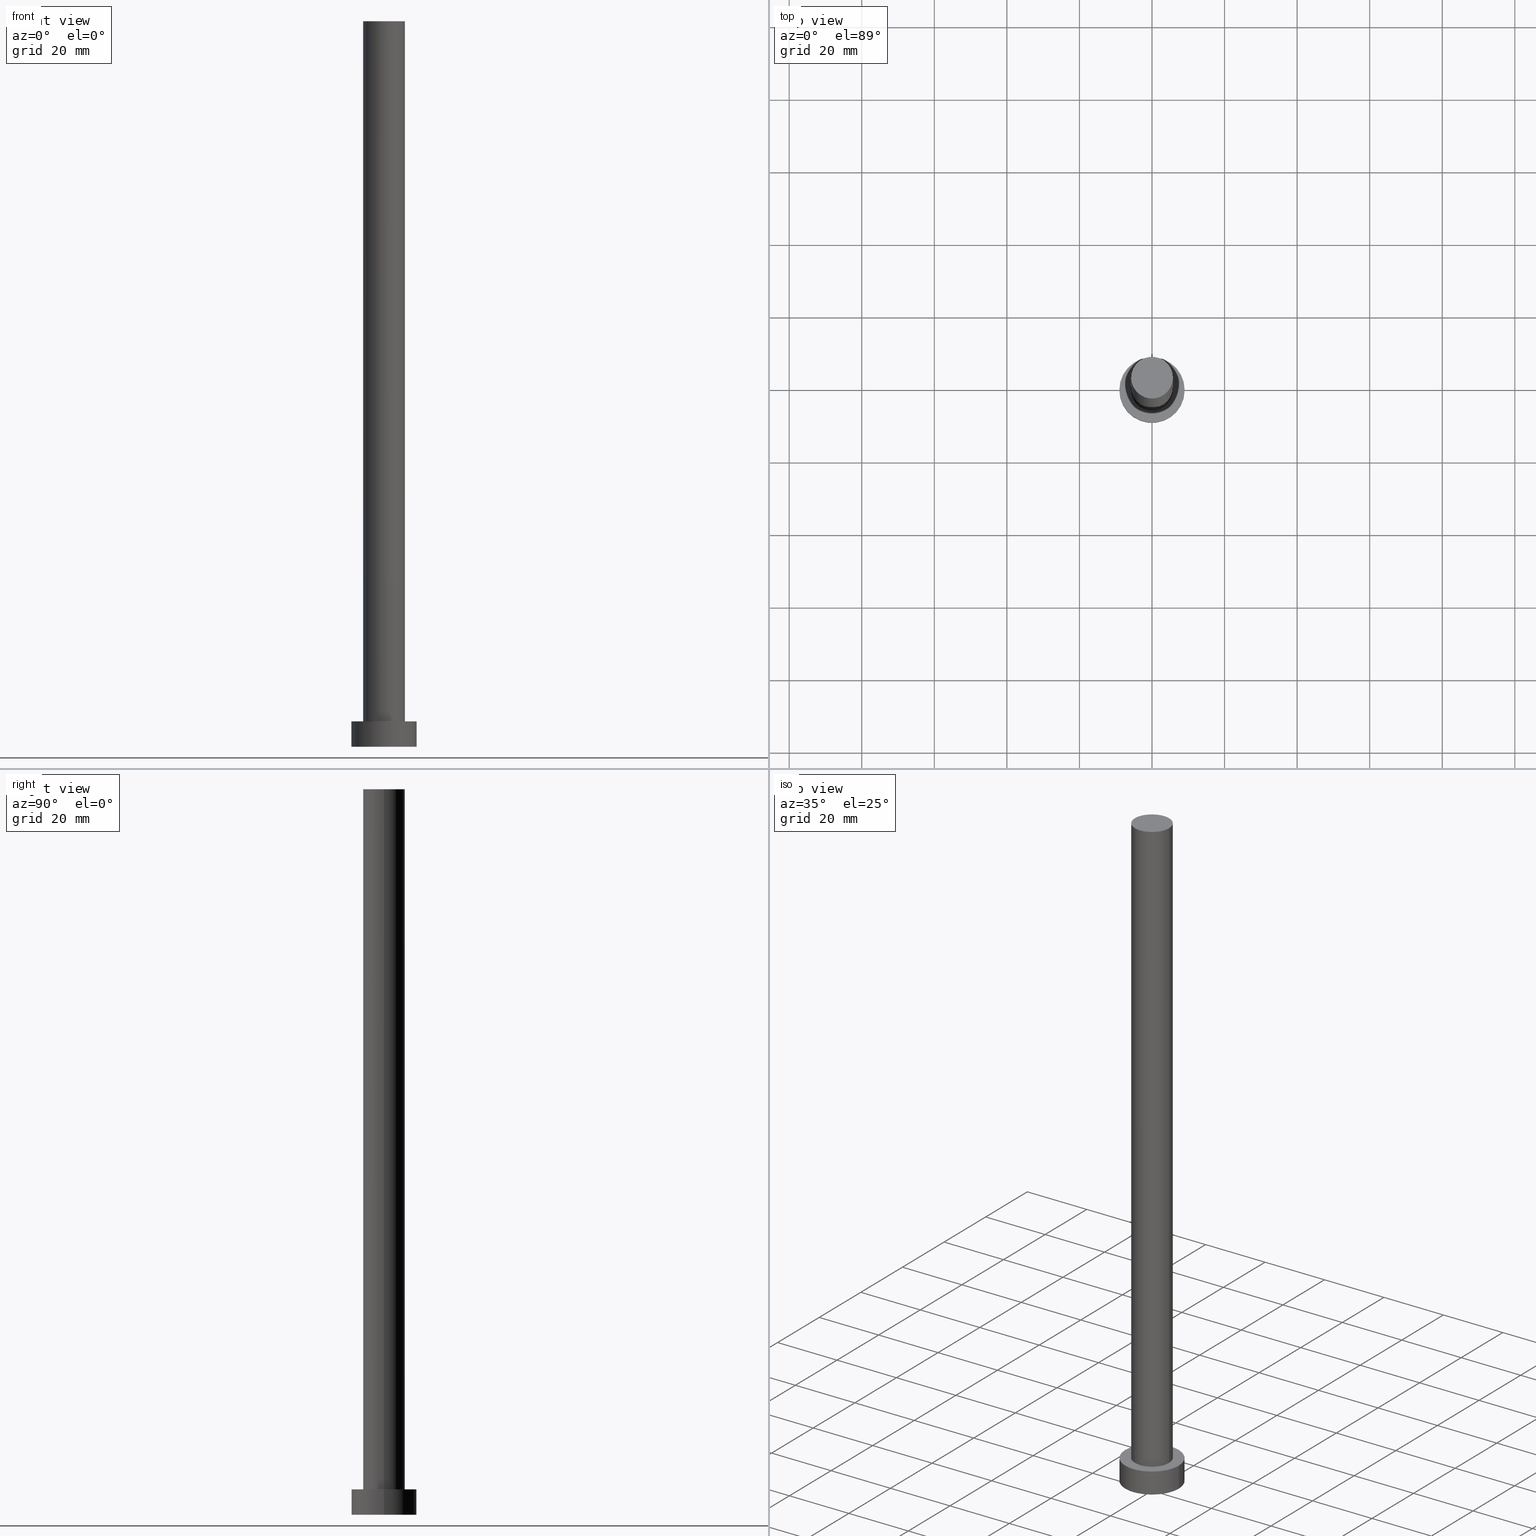
[diagram: canonical four-view strip — front | top / right | iso, engineering-drawing reading convention]
A machine part, canonical four-view strip (front | top / right | iso — engineering-drawing reading convention). The complete STEP part file that produces these views, byte-faithful:
ISO-10303-21;
HEADER;
FILE_DESCRIPTION (( 'STEP AP203' ),
    '1' );
FILE_NAME ('e01c.STEP',
    '2023-02-13T12:27:20',
    ( '' ),
    ( '' ),
    'SwSTEP 2.0',
    'SolidWorks 2019',
    '' );
FILE_SCHEMA (( 'CONFIG_CONTROL_DESIGN' ));
ENDSEC;

DATA;
#1 = APPROVAL_STATUS ( 'not_yet_approved' ) ;
#2 = DIRECTION ( 'NONE',  ( 0.000000000000000000, 0.000000000000000000, 1.000000000000000000 ) ) ;
#3 = CLOSED_SHELL ( 'NONE', ( #53, #253, #229, #205, #111, #145, #117 ) ) ;
#4 = PERSON_AND_ORGANIZATION_ROLE ( 'classification_officer' ) ;
#5 = AXIS2_PLACEMENT_3D ( 'NONE', #84, #17, #103 ) ;
#6 = VERTEX_POINT ( 'NONE', #23 ) ;
#7 = APPROVAL_STATUS ( 'not_yet_approved' ) ;
#8 = ORIENTED_EDGE ( 'NONE', *, *, #185, .F. ) ;
#9 = CARTESIAN_POINT ( 'NONE',  ( 0.000000000000000000, 0.000000000000000000, 200.0000000000000000 ) ) ;
#10 = PLANE ( 'NONE',  #184 ) ;
#11 = CIRCLE ( 'NONE', #82, 5.750000000000000000 ) ;
#12 = CARTESIAN_POINT ( 'NONE',  ( -5.750000000000000000, 0.000000000000000000, 200.0000000000000000 ) ) ;
#13 = FACE_OUTER_BOUND ( 'NONE', #116, .T. ) ;
#14 = AXIS2_PLACEMENT_3D ( 'NONE', #150, #125, #169 ) ;
#15 = EDGE_CURVE ( 'NONE', #110, #50, #210, .T. ) ;
#16 = DIRECTION ( 'NONE',  ( 1.000000000000000000, 0.000000000000000000, 0.000000000000000000 ) ) ;
#17 = DIRECTION ( 'NONE',  ( -0.000000000000000000, -0.000000000000000000, -1.000000000000000000 ) ) ;
#18 = ADVANCED_BREP_SHAPE_REPRESENTATION ( 'e01c', ( #67, #44 ), #160 ) ;
#19 = DIRECTION ( 'NONE',  ( 0.000000000000000000, 0.000000000000000000, 1.000000000000000000 ) ) ;
#20 = PERSON_AND_ORGANIZATION_ROLE ( 'design_supplier' ) ;
#21 = DIRECTION ( 'NONE',  ( 1.000000000000000000, 0.000000000000000000, 0.000000000000000000 ) ) ;
#22 = PERSON_AND_ORGANIZATION_ROLE ( 'design_owner' ) ;
#23 = CARTESIAN_POINT ( 'NONE',  ( 9.000000000000000000, 1.102182119232617714E-15, 7.000000000000000000 ) ) ;
#24 = PERSON_AND_ORGANIZATION ( #153, #175 ) ;
#25 = CC_DESIGN_APPROVAL ( #83, ( #62 ) ) ;
#26 = CARTESIAN_POINT ( 'NONE',  ( 0.000000000000000000, 0.000000000000000000, 0.000000000000000000 ) ) ;
#27 = AXIS2_PLACEMENT_3D ( 'NONE', #190, #168, #233 ) ;
#28 = AXIS2_PLACEMENT_3D ( 'NONE', #254, #146, #64 ) ;
#29 = VERTEX_POINT ( 'NONE', #173 ) ;
#30 = CC_DESIGN_DATE_AND_TIME_ASSIGNMENT ( #176, #94, ( #62 ) ) ;
#31 = DIRECTION ( 'NONE',  ( -1.000000000000000000, 0.000000000000000000, 0.000000000000000000 ) ) ;
#32 = CARTESIAN_POINT ( 'NONE',  ( -9.000000000000000000, 0.000000000000000000, 7.000000000000000000 ) ) ;
#33 = AXIS2_PLACEMENT_3D ( 'NONE', #100, #186, #162 ) ;
#34 = VECTOR ( 'NONE', #207, 1000.000000000000000 ) ;
#35 = ORIENTED_EDGE ( 'NONE', *, *, #152, .T. ) ;
#36 = APPLICATION_PROTOCOL_DEFINITION ( 'international standard', 'config_control_design', 1994, #149 ) ;
#37 = EDGE_LOOP ( 'NONE', ( #251, #148 ) ) ;
#38 = CC_DESIGN_PERSON_AND_ORGANIZATION_ASSIGNMENT ( #200, #20, ( #120 ) ) ;
#39 = MECHANICAL_CONTEXT ( 'NONE', #59, 'mechanical' ) ;
#40 = CARTESIAN_POINT ( 'NONE',  ( 9.000000000000000000, 1.102182119232617714E-15, 0.000000000000000000 ) ) ;
#41 = ORIENTED_EDGE ( 'NONE', *, *, #217, .F. ) ;
#42 = DIRECTION ( 'NONE',  ( -0.000000000000000000, -0.000000000000000000, -1.000000000000000000 ) ) ;
#43 = DESIGN_CONTEXT ( 'detailed design', #149, 'design' ) ;
#44 = AXIS2_PLACEMENT_3D ( 'NONE', #107, #195, #224 ) ;
#45 = CARTESIAN_POINT ( 'NONE',  ( 0.000000000000000000, 0.000000000000000000, 7.000000000000000000 ) ) ;
#46 = LINE ( 'NONE', #32, #164 ) ;
#47 = ORIENTED_EDGE ( 'NONE', *, *, #217, .T. ) ;
#48 = DIRECTION ( 'NONE',  ( 0.000000000000000000, 0.000000000000000000, 1.000000000000000000 ) ) ;
#49 = CALENDAR_DATE ( 2023, 13, 2 ) ;
#50 = VERTEX_POINT ( 'NONE', #133 ) ;
#51 = COORDINATED_UNIVERSAL_TIME_OFFSET ( 1, 0, .AHEAD. ) ;
#52 = ORIENTED_EDGE ( 'NONE', *, *, #185, .T. ) ;
#53 = ADVANCED_FACE ( 'NONE', ( #96 ), #157, .T. ) ;
#54 = CALENDAR_DATE ( 2023, 13, 2 ) ;
#55 = CARTESIAN_POINT ( 'NONE',  ( 9.000000000000000000, 1.102182119232617714E-15, 7.000000000000000000 ) ) ;
#56 = COORDINATED_UNIVERSAL_TIME_OFFSET ( 1, 0, .AHEAD. ) ;
#57 = DIRECTION ( 'NONE',  ( -0.000000000000000000, -0.000000000000000000, -1.000000000000000000 ) ) ;
#58 = PLANE ( 'NONE',  #66 ) ;
#59 = APPLICATION_CONTEXT ( 'configuration controlled 3d designs of mechanical parts and assemblies' ) ;
#60 = PRODUCT_RELATED_PRODUCT_CATEGORY ( 'detail', '', ( #86 ) ) ;
#61 = CARTESIAN_POINT ( 'NONE',  ( 0.000000000000000000, 0.000000000000000000, 200.0000000000000000 ) ) ;
#62 = SECURITY_CLASSIFICATION ( '', '', #92 ) ;
#63 =( NAMED_UNIT ( * ) PLANE_ANGLE_UNIT ( ) SI_UNIT ( $, .RADIAN. ) );
#64 = DIRECTION ( 'NONE',  ( -1.000000000000000000, 0.000000000000000000, 0.000000000000000000 ) ) ;
#65 = EDGE_CURVE ( 'NONE', #6, #110, #201, .T. ) ;
#66 = AXIS2_PLACEMENT_3D ( 'NONE', #91, #2, #137 ) ;
#67 = MANIFOLD_SOLID_BREP ( 'P�idat vysunut�m3', #3 ) ;
#68 = CC_DESIGN_PERSON_AND_ORGANIZATION_ASSIGNMENT ( #170, #158, ( #124 ) ) ;
#69 = CC_DESIGN_APPROVAL ( #102, ( #120 ) ) ;
#70 = PERSON_AND_ORGANIZATION ( #153, #175 ) ;
#71 = ORIENTED_EDGE ( 'NONE', *, *, #163, .T. ) ;
#72 = APPROVAL_ROLE ( '' ) ;
#73 = VERTEX_POINT ( 'NONE', #134 ) ;
#74 = COORDINATED_UNIVERSAL_TIME_OFFSET ( 1, 0, .AHEAD. ) ;
#75 = ORIENTED_EDGE ( 'NONE', *, *, #65, .F. ) ;
#76 = APPROVAL_DATE_TIME ( #118, #102 ) ;
#77 = EDGE_LOOP ( 'NONE', ( #93, #221 ) ) ;
#78 = CC_DESIGN_APPROVAL ( #197, ( #124 ) ) ;
#79 = FACE_OUTER_BOUND ( 'NONE', #240, .T. ) ;
#80 = CC_DESIGN_PERSON_AND_ORGANIZATION_ASSIGNMENT ( #151, #198, ( #120 ) ) ;
#81 = LINE ( 'NONE', #99, #101 ) ;
#82 = AXIS2_PLACEMENT_3D ( 'NONE', #192, #48, #89 ) ;
#83 = APPROVAL ( #7, 'NEUR�EN�' ) ;
#84 = CARTESIAN_POINT ( 'NONE',  ( 0.000000000000000000, 0.000000000000000000, 7.000000000000000000 ) ) ;
#85 = EDGE_LOOP ( 'NONE', ( #199, #223, #177, #8 ) ) ;
#86 = PRODUCT ( 'e01c', 'e01c', '', ( #39 ) ) ;
#87 = ORIENTED_EDGE ( 'NONE', *, *, #140, .T. ) ;
#88 = CC_DESIGN_PERSON_AND_ORGANIZATION_ASSIGNMENT ( #24, #4, ( #62 ) ) ;
#89 = DIRECTION ( 'NONE',  ( 1.000000000000000000, 0.000000000000000000, 0.000000000000000000 ) ) ;
#90 = CC_DESIGN_DATE_AND_TIME_ASSIGNMENT ( #159, #115, ( #124 ) ) ;
#91 = CARTESIAN_POINT ( 'NONE',  ( 0.000000000000000000, 0.000000000000000000, 200.0000000000000000 ) ) ;
#92 = SECURITY_CLASSIFICATION_LEVEL ( 'unclassified' ) ;
#93 = ORIENTED_EDGE ( 'NONE', *, *, #135, .F. ) ;
#94 = DATE_TIME_ROLE ( 'classification_date' ) ;
#95 = APPROVAL_STATUS ( 'not_yet_approved' ) ;
#96 = FACE_OUTER_BOUND ( 'NONE', #178, .T. ) ;
#97 = APPROVAL_PERSON_ORGANIZATION ( #132, #83, #72 ) ;
#98 = VERTEX_POINT ( 'NONE', #182 ) ;
#99 = CARTESIAN_POINT ( 'NONE',  ( 5.750000000000000000, 7.041719095097280880E-16, 200.0000000000000000 ) ) ;
#100 = CARTESIAN_POINT ( 'NONE',  ( 0.000000000000000000, 0.000000000000000000, 7.000000000000000000 ) ) ;
#101 = VECTOR ( 'NONE', #211, 1000.000000000000000 ) ;
#102 = APPROVAL ( #1, 'NEUR�EN�' ) ;
#103 = DIRECTION ( 'NONE',  ( -1.000000000000000000, 0.000000000000000000, 0.000000000000000000 ) ) ;
#104 = DIRECTION ( 'NONE',  ( 0.000000000000000000, 0.000000000000000000, 1.000000000000000000 ) ) ;
#105 = AXIS2_PLACEMENT_3D ( 'NONE', #232, #123, #16 ) ;
#106 = FACE_BOUND ( 'NONE', #77, .T. ) ;
#107 = CARTESIAN_POINT ( 'NONE',  ( 0.000000000000000000, 0.000000000000000000, 0.000000000000000000 ) ) ;
#108 = ORIENTED_EDGE ( 'NONE', *, *, #135, .T. ) ;
#109 = APPROVAL_DATE_TIME ( #227, #83 ) ;
#110 = VERTEX_POINT ( 'NONE', #40 ) ;
#111 = ADVANCED_FACE ( 'NONE', ( #228 ), #10, .F. ) ;
#112 = CALENDAR_DATE ( 2023, 13, 2 ) ;
#113 = DATE_AND_TIME ( #112, #193 ) ;
#114 = DIRECTION ( 'NONE',  ( -1.000000000000000000, 0.000000000000000000, 0.000000000000000000 ) ) ;
#115 = DATE_TIME_ROLE ( 'creation_date' ) ;
#116 = EDGE_LOOP ( 'NONE', ( #75, #155, #52, #194 ) ) ;
#117 = ADVANCED_FACE ( 'NONE', ( #79 ), #58, .T. ) ;
#118 = DATE_AND_TIME ( #202, #179 ) ;
#119 = ORIENTED_EDGE ( 'NONE', *, *, #140, .F. ) ;
#120 = PRODUCT_DEFINITION_FORMATION_WITH_SPECIFIED_SOURCE ( 'LIBOVOLN�', '', #86, .NOT_KNOWN. ) ;
#121 = EDGE_CURVE ( 'NONE', #98, #144, #230, .T. ) ;
#122 = DIRECTION ( 'NONE',  ( 1.000000000000000000, 0.000000000000000000, 0.000000000000000000 ) ) ;
#123 = DIRECTION ( 'NONE',  ( 0.000000000000000000, 0.000000000000000000, 1.000000000000000000 ) ) ;
#124 = PRODUCT_DEFINITION ( 'NEZN�M�', '', #120, #43 ) ;
#125 = DIRECTION ( 'NONE',  ( 0.000000000000000000, 0.000000000000000000, 1.000000000000000000 ) ) ;
#126 = DIRECTION ( 'NONE',  ( 1.000000000000000000, 0.000000000000000000, 0.000000000000000000 ) ) ;
#127 = ORIENTED_EDGE ( 'NONE', *, *, #235, .F. ) ;
#128 = APPLICATION_PROTOCOL_DEFINITION ( 'international standard', 'config_control_design', 1994, #59 ) ;
#129 = CIRCLE ( 'NONE', #27, 5.750000000000000000 ) ;
#130 = APPROVAL_PERSON_ORGANIZATION ( #70, #197, #222 ) ;
#131 = APPROVAL_ROLE ( '' ) ;
#132 = PERSON_AND_ORGANIZATION ( #153, #175 ) ;
#133 = CARTESIAN_POINT ( 'NONE',  ( -9.000000000000000000, 0.000000000000000000, 0.000000000000000000 ) ) ;
#134 = CARTESIAN_POINT ( 'NONE',  ( -9.000000000000000000, 0.000000000000000000, 7.000000000000000000 ) ) ;
#135 = EDGE_CURVE ( 'NONE', #144, #161, #181, .T. ) ;
#136 = UNCERTAINTY_MEASURE_WITH_UNIT (LENGTH_MEASURE( 1.000000000000000082E-05 ), #236, 'distance_accuracy_value', 'NONE');
#137 = DIRECTION ( 'NONE',  ( 1.000000000000000000, 0.000000000000000000, -0.000000000000000000 ) ) ;
#138 = PRODUCT_DEFINITION_SHAPE ( 'NONE', 'NONE',  #124 ) ;
#139 = APPROVAL_PERSON_ORGANIZATION ( #172, #102, #131 ) ;
#140 = EDGE_CURVE ( 'NONE', #29, #161, #81, .T. ) ;
#141 = AXIS2_PLACEMENT_3D ( 'NONE', #237, #216, #255 ) ;
#142 = PLANE ( 'NONE',  #141 ) ;
#143 = DIRECTION ( 'NONE',  ( -0.000000000000000000, -0.000000000000000000, -1.000000000000000000 ) ) ;
#144 = VERTEX_POINT ( 'NONE', #183 ) ;
#145 = ADVANCED_FACE ( 'NONE', ( #209 ), #246, .T. ) ;
#146 = DIRECTION ( 'NONE',  ( -0.000000000000000000, -0.000000000000000000, -1.000000000000000000 ) ) ;
#147 = VECTOR ( 'NONE', #57, 1000.000000000000000 ) ;
#148 = ORIENTED_EDGE ( 'NONE', *, *, #191, .T. ) ;
#149 = APPLICATION_CONTEXT ( 'configuration controlled 3d designs of mechanical parts and assemblies' ) ;
#150 = CARTESIAN_POINT ( 'NONE',  ( 0.000000000000000000, 0.000000000000000000, 200.0000000000000000 ) ) ;
#151 = PERSON_AND_ORGANIZATION ( #153, #175 ) ;
#152 = EDGE_CURVE ( 'NONE', #98, #29, #219, .T. ) ;
#153 = PERSON ( 'NEUR�EN�', 'NEUR�EN�', 'NEUR�EN�', ('NEUR�EN�'), ('NEUR�EN�'), ('NEUR�EN�') ) ;
#154 = PERSON_AND_ORGANIZATION ( #153, #175 ) ;
#155 = ORIENTED_EDGE ( 'NONE', *, *, #248, .F. ) ;
#156 = CALENDAR_DATE ( 2023, 13, 2 ) ;
#157 = CYLINDRICAL_SURFACE ( 'NONE', #214, 5.750000000000000000 ) ;
#158 = PERSON_AND_ORGANIZATION_ROLE ( 'creator' ) ;
#159 = DATE_AND_TIME ( #49, #231 ) ;
#160 =( GEOMETRIC_REPRESENTATION_CONTEXT ( 3 ) GLOBAL_UNCERTAINTY_ASSIGNED_CONTEXT ( ( #136 ) ) GLOBAL_UNIT_ASSIGNED_CONTEXT ( ( #236, #63, #252 ) ) REPRESENTATION_CONTEXT ( 'NONE', 'WORKASPACE' ) );
#161 = VERTEX_POINT ( 'NONE', #189 ) ;
#162 = DIRECTION ( 'NONE',  ( 1.000000000000000000, 0.000000000000000000, 0.000000000000000000 ) ) ;
#163 = EDGE_CURVE ( 'NONE', #161, #144, #129, .T. ) ;
#164 = VECTOR ( 'NONE', #143, 1000.000000000000000 ) ;
#165 = FACE_OUTER_BOUND ( 'NONE', #85, .T. ) ;
#166 = ORIENTED_EDGE ( 'NONE', *, *, #121, .F. ) ;
#167 = CC_DESIGN_SECURITY_CLASSIFICATION ( #62, ( #120 ) ) ;
#168 = DIRECTION ( 'NONE',  ( 0.000000000000000000, 0.000000000000000000, 1.000000000000000000 ) ) ;
#169 = DIRECTION ( 'NONE',  ( 1.000000000000000000, 0.000000000000000000, 0.000000000000000000 ) ) ;
#170 = PERSON_AND_ORGANIZATION ( #153, #175 ) ;
#171 = DIRECTION ( 'NONE',  ( 1.000000000000000000, 0.000000000000000000, -0.000000000000000000 ) ) ;
#172 = PERSON_AND_ORGANIZATION ( #153, #175 ) ;
#173 = CARTESIAN_POINT ( 'NONE',  ( 5.750000000000000000, 7.041719095097280880E-16, 200.0000000000000000 ) ) ;
#174 = CC_DESIGN_PERSON_AND_ORGANIZATION_ASSIGNMENT ( #154, #22, ( #86 ) ) ;
#175 = ORGANIZATION ( 'NEUR�EN�', 'NEUR�EN�', '' ) ;
#176 = DATE_AND_TIME ( #54, #218 ) ;
#177 = ORIENTED_EDGE ( 'NONE', *, *, #15, .T. ) ;
#178 = EDGE_LOOP ( 'NONE', ( #41, #87, #71, #166 ) ) ;
#179 = LOCAL_TIME ( 13, 27, 20.00000000000000000, #51 ) ;
#180 = AXIS2_PLACEMENT_3D ( 'NONE', #61, #42, #31 ) ;
#181 = CIRCLE ( 'NONE', #33, 5.750000000000000000 ) ;
#182 = CARTESIAN_POINT ( 'NONE',  ( -5.750000000000000000, 0.000000000000000000, 200.0000000000000000 ) ) ;
#183 = CARTESIAN_POINT ( 'NONE',  ( -5.750000000000000000, 0.000000000000000000, 7.000000000000000000 ) ) ;
#184 = AXIS2_PLACEMENT_3D ( 'NONE', #26, #19, #171 ) ;
#185 = EDGE_CURVE ( 'NONE', #73, #50, #46, .T. ) ;
#186 = DIRECTION ( 'NONE',  ( 0.000000000000000000, 0.000000000000000000, 1.000000000000000000 ) ) ;
#187 = FACE_OUTER_BOUND ( 'NONE', #37, .T. ) ;
#188 = CARTESIAN_POINT ( 'NONE',  ( 0.000000000000000000, 0.000000000000000000, 0.000000000000000000 ) ) ;
#189 = CARTESIAN_POINT ( 'NONE',  ( 5.750000000000000000, 7.041719095097280880E-16, 7.000000000000000000 ) ) ;
#190 = CARTESIAN_POINT ( 'NONE',  ( 0.000000000000000000, 0.000000000000000000, 7.000000000000000000 ) ) ;
#191 = EDGE_CURVE ( 'NONE', #6, #73, #206, .T. ) ;
#192 = CARTESIAN_POINT ( 'NONE',  ( 0.000000000000000000, 0.000000000000000000, 200.0000000000000000 ) ) ;
#193 = LOCAL_TIME ( 13, 27, 20.00000000000000000, #74 ) ;
#194 = ORIENTED_EDGE ( 'NONE', *, *, #235, .T. ) ;
#195 = DIRECTION ( 'NONE',  ( 0.000000000000000000, 0.000000000000000000, 1.000000000000000000 ) ) ;
#196 = ORIENTED_EDGE ( 'NONE', *, *, #15, .F. ) ;
#197 = APPROVAL ( #95, 'NEUR�EN�' ) ;
#198 = PERSON_AND_ORGANIZATION_ROLE ( 'creator' ) ;
#199 = ORIENTED_EDGE ( 'NONE', *, *, #191, .F. ) ;
#200 = PERSON_AND_ORGANIZATION ( #153, #175 ) ;
#201 = LINE ( 'NONE', #55, #147 ) ;
#202 = CALENDAR_DATE ( 2023, 13, 2 ) ;
#203 = COORDINATED_UNIVERSAL_TIME_OFFSET ( 1, 0, .AHEAD. ) ;
#204 = CARTESIAN_POINT ( 'NONE',  ( 0.000000000000000000, 0.000000000000000000, 0.000000000000000000 ) ) ;
#205 = ADVANCED_FACE ( 'NONE', ( #106, #187 ), #142, .T. ) ;
#206 = CIRCLE ( 'NONE', #105, 9.000000000000000000 ) ;
#207 = DIRECTION ( 'NONE',  ( -0.000000000000000000, -0.000000000000000000, -1.000000000000000000 ) ) ;
#208 = CIRCLE ( 'NONE', #215, 9.000000000000000000 ) ;
#209 = FACE_OUTER_BOUND ( 'NONE', #234, .T. ) ;
#210 = CIRCLE ( 'NONE', #249, 9.000000000000000000 ) ;
#211 = DIRECTION ( 'NONE',  ( -0.000000000000000000, -0.000000000000000000, -1.000000000000000000 ) ) ;
#212 = CYLINDRICAL_SURFACE ( 'NONE', #28, 9.000000000000000000 ) ;
#213 = CYLINDRICAL_SURFACE ( 'NONE', #5, 9.000000000000000000 ) ;
#214 = AXIS2_PLACEMENT_3D ( 'NONE', #9, #242, #114 ) ;
#215 = AXIS2_PLACEMENT_3D ( 'NONE', #45, #104, #122 ) ;
#216 = DIRECTION ( 'NONE',  ( 0.000000000000000000, 0.000000000000000000, 1.000000000000000000 ) ) ;
#217 = EDGE_CURVE ( 'NONE', #29, #98, #11, .T. ) ;
#218 = LOCAL_TIME ( 13, 27, 20.00000000000000000, #56 ) ;
#219 = CIRCLE ( 'NONE', #14, 5.750000000000000000 ) ;
#220 = AXIS2_PLACEMENT_3D ( 'NONE', #188, #250, #126 ) ;
#221 = ORIENTED_EDGE ( 'NONE', *, *, #163, .F. ) ;
#222 = APPROVAL_ROLE ( '' ) ;
#223 = ORIENTED_EDGE ( 'NONE', *, *, #65, .T. ) ;
#224 = DIRECTION ( 'NONE',  ( 1.000000000000000000, 0.000000000000000000, 0.000000000000000000 ) ) ;
#225 = ORIENTED_EDGE ( 'NONE', *, *, #152, .F. ) ;
#226 = EDGE_LOOP ( 'NONE', ( #127, #196 ) ) ;
#227 = DATE_AND_TIME ( #156, #247 ) ;
#228 = FACE_OUTER_BOUND ( 'NONE', #226, .T. ) ;
#229 = ADVANCED_FACE ( 'NONE', ( #13 ), #213, .T. ) ;
#230 = LINE ( 'NONE', #12, #34 ) ;
#231 = LOCAL_TIME ( 13, 27, 20.00000000000000000, #243 ) ;
#232 = CARTESIAN_POINT ( 'NONE',  ( 0.000000000000000000, 0.000000000000000000, 7.000000000000000000 ) ) ;
#233 = DIRECTION ( 'NONE',  ( 1.000000000000000000, 0.000000000000000000, 0.000000000000000000 ) ) ;
#234 = EDGE_LOOP ( 'NONE', ( #119, #225, #244, #108 ) ) ;
#235 = EDGE_CURVE ( 'NONE', #50, #110, #239, .T. ) ;
#236 =( LENGTH_UNIT ( ) NAMED_UNIT ( * ) SI_UNIT ( .MILLI., .METRE. ) );
#237 = CARTESIAN_POINT ( 'NONE',  ( 0.000000000000000000, 0.000000000000000000, 7.000000000000000000 ) ) ;
#238 = APPROVAL_DATE_TIME ( #113, #197 ) ;
#239 = CIRCLE ( 'NONE', #220, 9.000000000000000000 ) ;
#240 = EDGE_LOOP ( 'NONE', ( #35, #47 ) ) ;
#241 = SHAPE_DEFINITION_REPRESENTATION ( #138, #18 ) ;
#242 = DIRECTION ( 'NONE',  ( -0.000000000000000000, -0.000000000000000000, -1.000000000000000000 ) ) ;
#243 = COORDINATED_UNIVERSAL_TIME_OFFSET ( 1, 0, .AHEAD. ) ;
#244 = ORIENTED_EDGE ( 'NONE', *, *, #121, .T. ) ;
#245 = DIRECTION ( 'NONE',  ( 0.000000000000000000, 0.000000000000000000, 1.000000000000000000 ) ) ;
#246 = CYLINDRICAL_SURFACE ( 'NONE', #180, 5.750000000000000000 ) ;
#247 = LOCAL_TIME ( 13, 27, 20.00000000000000000, #203 ) ;
#248 = EDGE_CURVE ( 'NONE', #73, #6, #208, .T. ) ;
#249 = AXIS2_PLACEMENT_3D ( 'NONE', #204, #245, #21 ) ;
#250 = DIRECTION ( 'NONE',  ( 0.000000000000000000, 0.000000000000000000, 1.000000000000000000 ) ) ;
#251 = ORIENTED_EDGE ( 'NONE', *, *, #248, .T. ) ;
#252 =( NAMED_UNIT ( * ) SI_UNIT ( $, .STERADIAN. ) SOLID_ANGLE_UNIT ( ) );
#253 = ADVANCED_FACE ( 'NONE', ( #165 ), #212, .T. ) ;
#254 = CARTESIAN_POINT ( 'NONE',  ( 0.000000000000000000, 0.000000000000000000, 7.000000000000000000 ) ) ;
#255 = DIRECTION ( 'NONE',  ( 1.000000000000000000, 0.000000000000000000, -0.000000000000000000 ) ) ;
ENDSEC;
END-ISO-10303-21;
